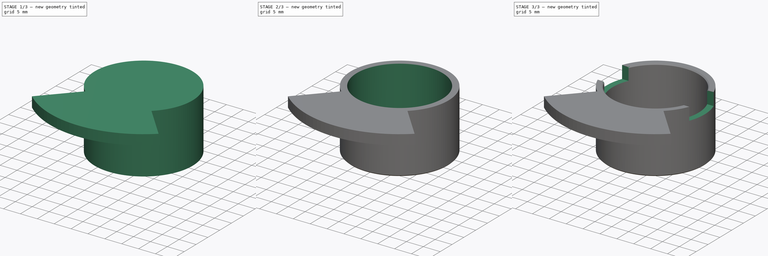
[diagram: build sequence overview — one tinted view per stage of 3, left to right]
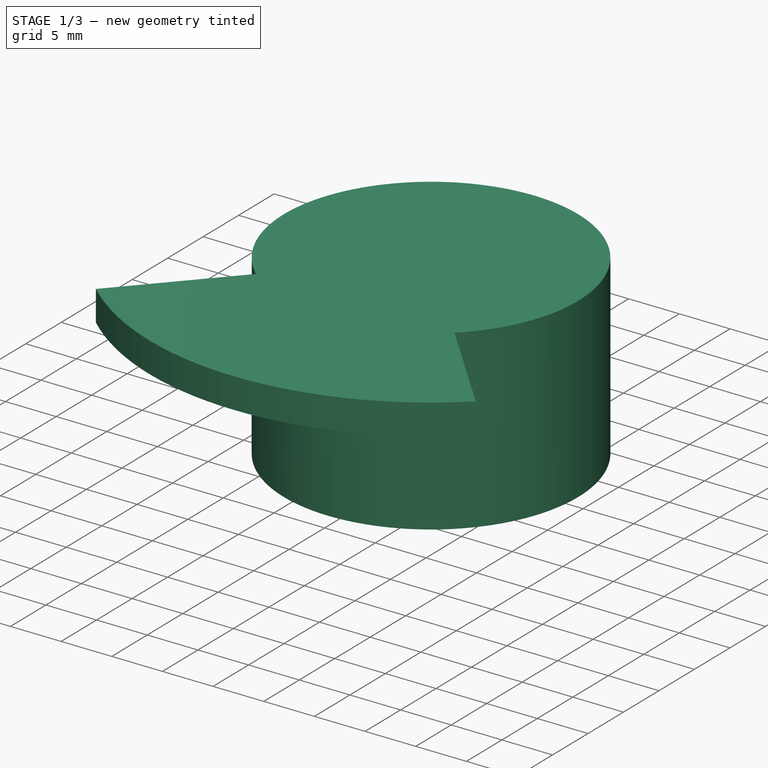
[diagram: stage 1 of 3 — iso view after this stage's code; geometry added in this stage tinted green]
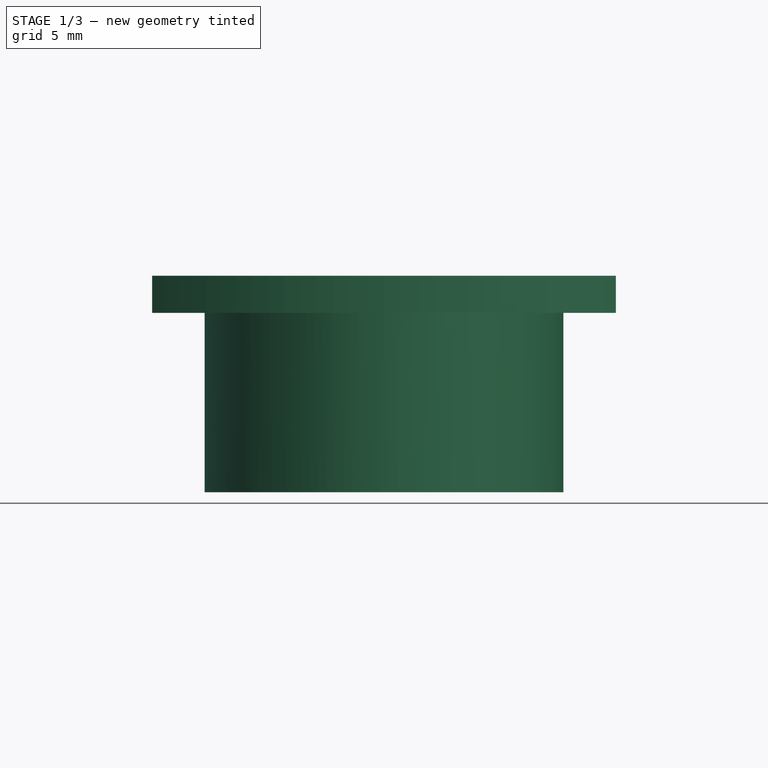
[diagram: stage 1 of 3 — front view after this stage's code; geometry added in this stage tinted green]
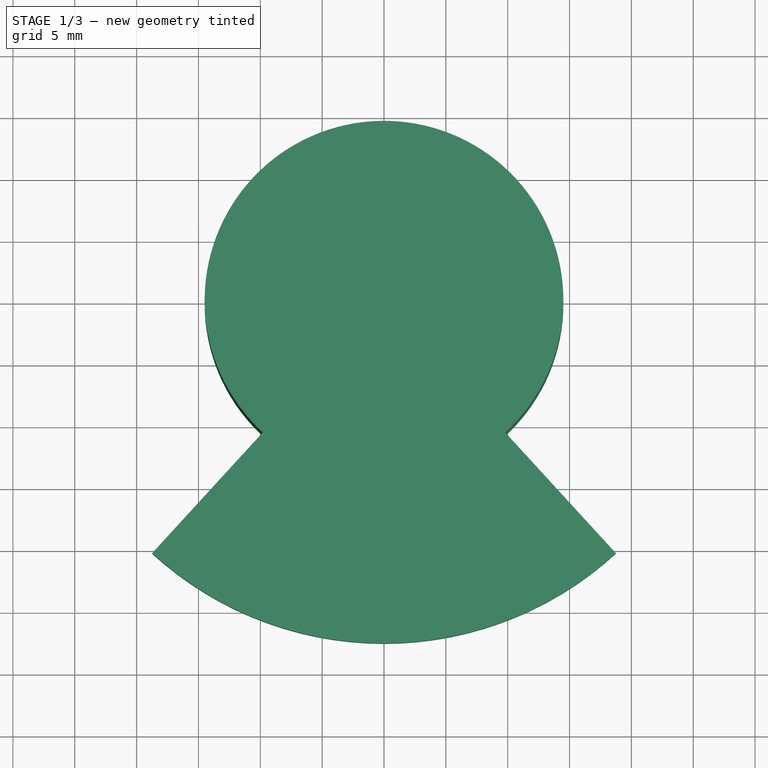
[diagram: stage 1 of 3 — top view after this stage's code; geometry added in this stage tinted green]
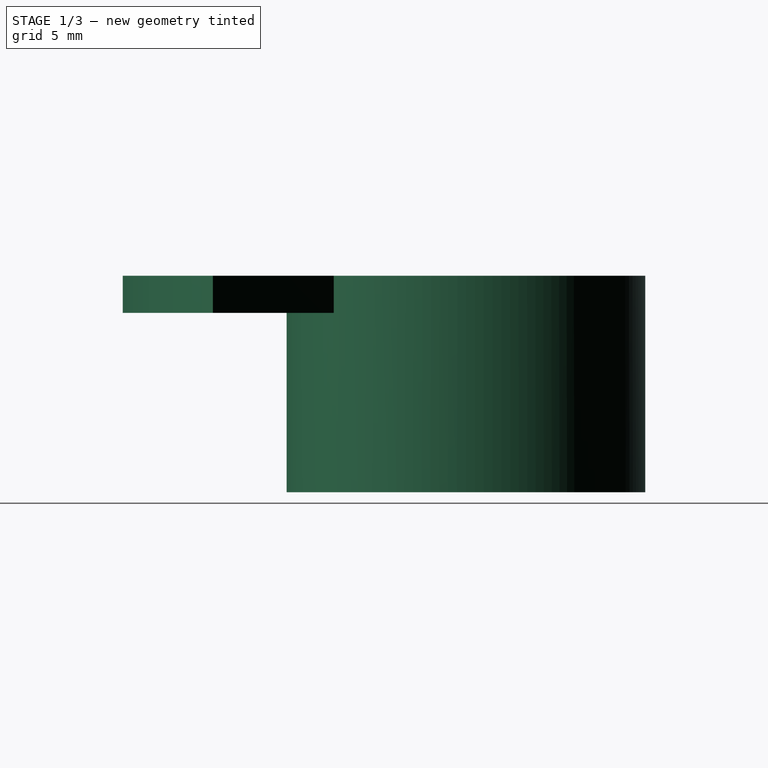
[diagram: stage 1 of 3 — right view after this stage's code; geometry added in this stage tinted green]
FCSTD DOCUMENT  (FreeCAD 0.21R32110 (Git))
Label: Yoke_Roll_IR_Limit_Ring
License: All rights reserved
LicenseURL: http://en.wikipedia.org/wiki/All_rights_reserved
objects: Sketcher::SketchObject×4, PartDesign::Pad×2, PartDesign::Pocket×2, PartDesign::Chamfer×2, App::Part×1, PartDesign::Body×1, App::MeasureDistance×1
note: 17 computed .brp shape members not serialized (recipe doc carries the construction recipe); baked Part::Feature solids carry a one-line shape summary decoded from their .brp

FEATURE [App::Part] Part
  Origin = -> Origin
FEATURE [Sketcher::SketchObject] Sketch136
  FullyConstrained = true
  MapMode = 2
  Placement = pos=(0,0,18.5) rot=(0,0,1;0rad)
  sketch-geometry (1):
    g0: Circle CenterX=0 CenterY=0 CenterZ=0 NormalX=0 NormalY=0 NormalZ=1 AngleXU=0 Radius=14.5
  constraints (2):
    c: Coincident(g0,g-1)
    c: Diameter(g0) = 29
FEATURE [Sketcher::SketchObject] Sketch138
  FullyConstrained = true
  MapMode = 5
  Support = -> [XY_Plane044]
  sketch-geometry (1):
    g0: Circle CenterX=0 CenterY=0 CenterZ=0 NormalX=0 NormalY=0 NormalZ=1 AngleXU=0 Radius=12.725
  constraints (2):
    c: Coincident(g0,g-1)
    c: Diameter(g0) = 25.45
FEATURE [Sketcher::SketchObject] Sketch141
  AttachmentOffset = pos=(0,0,17) rot=(0,0,1;0rad)
  FullyConstrained = true
  MapMode = 5
  Placement = pos=(0,0,17) rot=(0,0,1;0rad)
  Support = -> [XY_Plane044]
  sketch-geometry (3):
    g0: LineSegment StartX=0 StartY=0 StartZ=0 EndX=18.7476 EndY=-20.4594 EndZ=0
    g1: LineSegment StartX=0 StartY=0 StartZ=0 EndX=-18.7476 EndY=-20.4594 EndZ=0
    g2: ArcOfCircle CenterX=0 CenterY=0 CenterZ=0 NormalX=0 NormalY=0 NormalZ=1 AngleXU=0 Radius=27.75 StartAngle=3.97062 EndAngle=5.45415
  constraints (8):
    c: Coincident(g0,g-1)
    c: Coincident(g1,g0)
    c: Coincident(g2,g0)
    c: Diameter(g2) = 55.5
    c: Coincident(g2,g0)
    c: Coincident(g2,g1)
    c: Symmetric(g1,g0,g-2)
    c: Angle(g1,g0) = 1.48353
FEATURE [PartDesign::Pad] Pad078
  Direction = (0,0,1)
  Length = 17.5
  Length2 = 10
  Placement = pos=(0,0,18.5) rot=(0,0,1;0rad)
  Profile = -> Sketch136
  ReferenceAxis = -> Sketch136 [N_Axis]
  Reversed = true
  Type = 0
FEATURE [PartDesign::Pad] Pad079
  BaseFeature = -> Pad078
  Direction = (0,0,1)
  Length = 3
  Length2 = 10
  Midplane = true
  Placement = pos=(0,0,18.5) rot=(0,0,1;0rad)
  Profile = -> Sketch141
  ReferenceAxis = -> Sketch141 [N_Axis]
  Type = 0
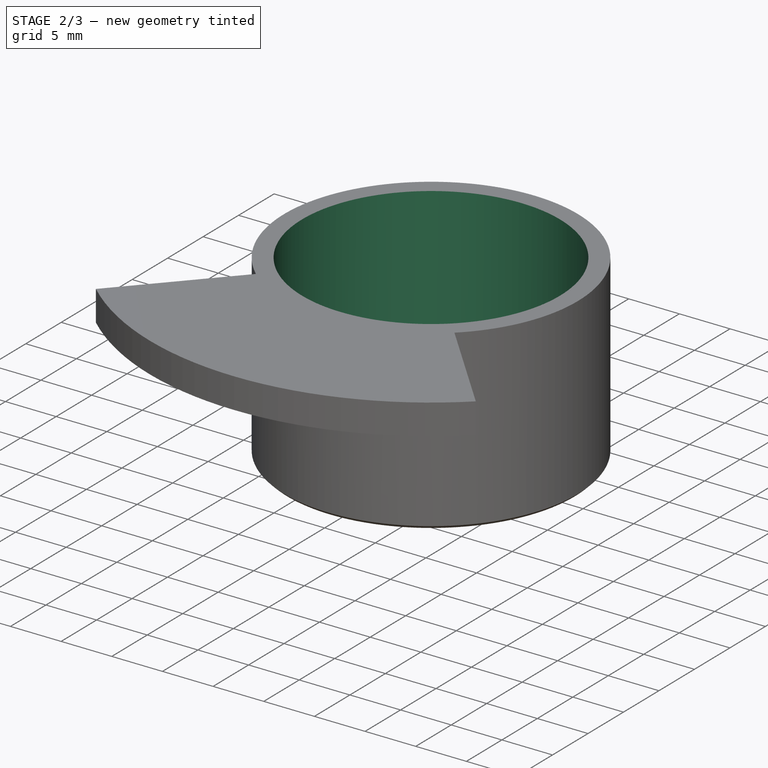
[diagram: stage 2 of 3 — iso view after this stage's code; geometry added in this stage tinted green]
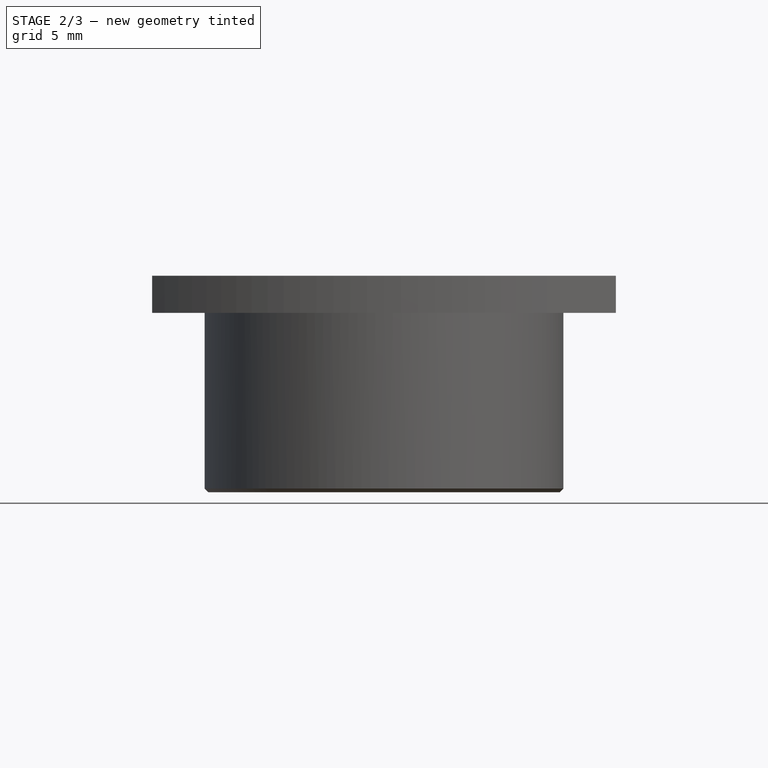
[diagram: stage 2 of 3 — front view after this stage's code; geometry added in this stage tinted green]
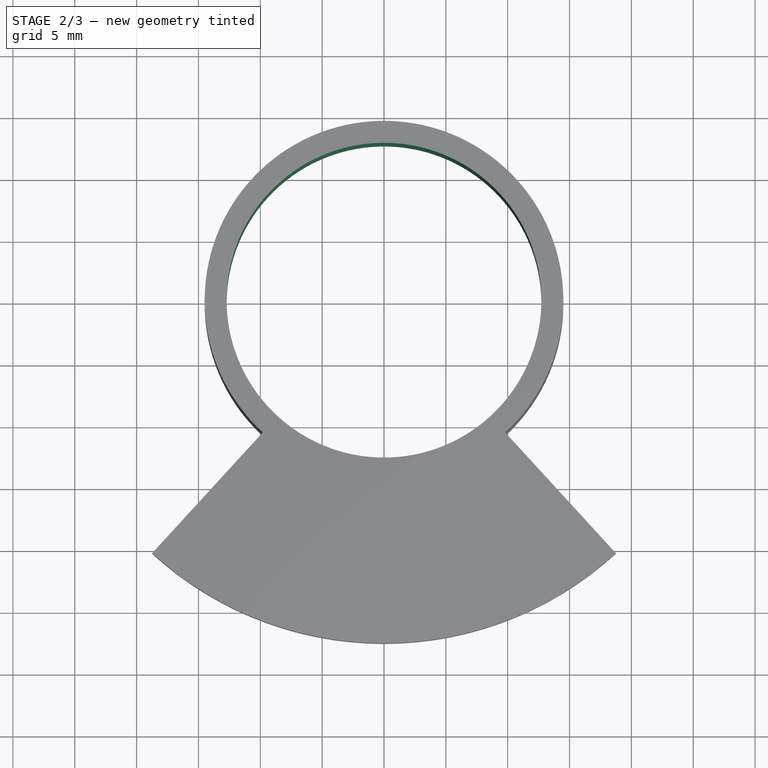
[diagram: stage 2 of 3 — top view after this stage's code; geometry added in this stage tinted green]
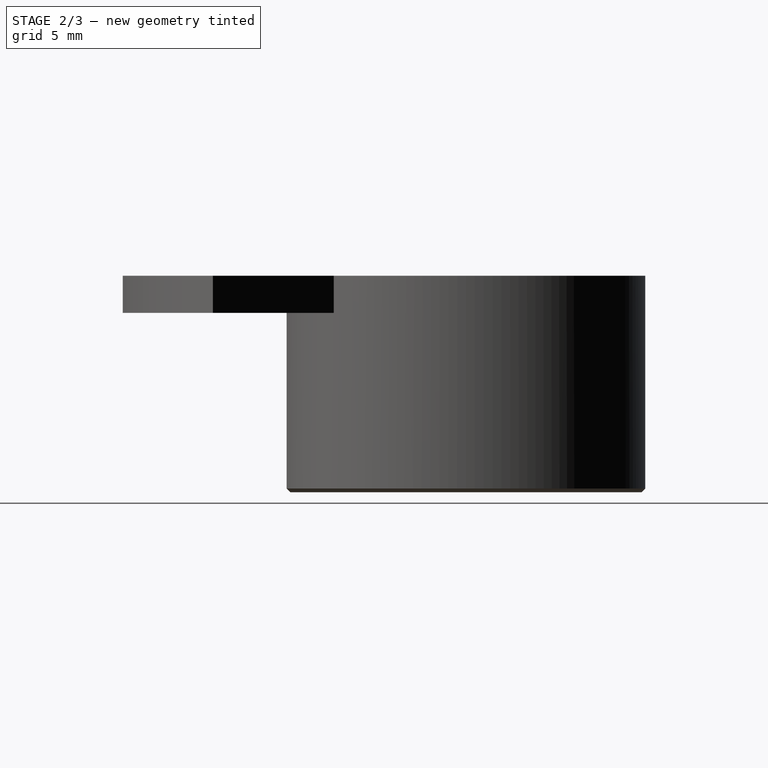
[diagram: stage 2 of 3 — right view after this stage's code; geometry added in this stage tinted green]
FEATURE [PartDesign::Pocket] Pocket051
  BaseFeature = -> Pad079
  Direction = (0,0,-1)
  Length = 5
  Length2 = 5
  Placement = pos=(0,0,18.5) rot=(0,0,1;0rad)
  Profile = -> Sketch138
  ReferenceAxis = -> Sketch138 [N_Axis]
  Reversed = true
  Type = 1
FEATURE [PartDesign::Chamfer] Chamfer
  Angle = 45
  Base = -> Pocket051 [Edge19,Edge7]
  BaseFeature = -> Pocket051
  ChamferType = 0
  FlipDirection = false
  Placement = pos=(0,0,18.5) rot=(0,0,1;0rad)
  Size = 0.3
  Size2 = 1
  SupportTransform = false
  UseAllEdges = false
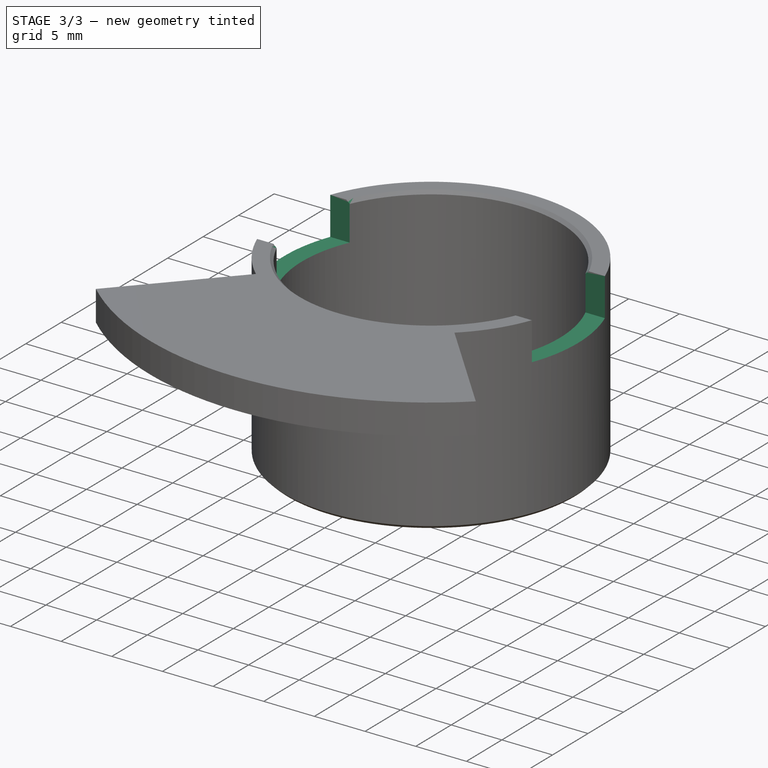
[diagram: stage 3 of 3 — iso view after this stage's code; geometry added in this stage tinted green]
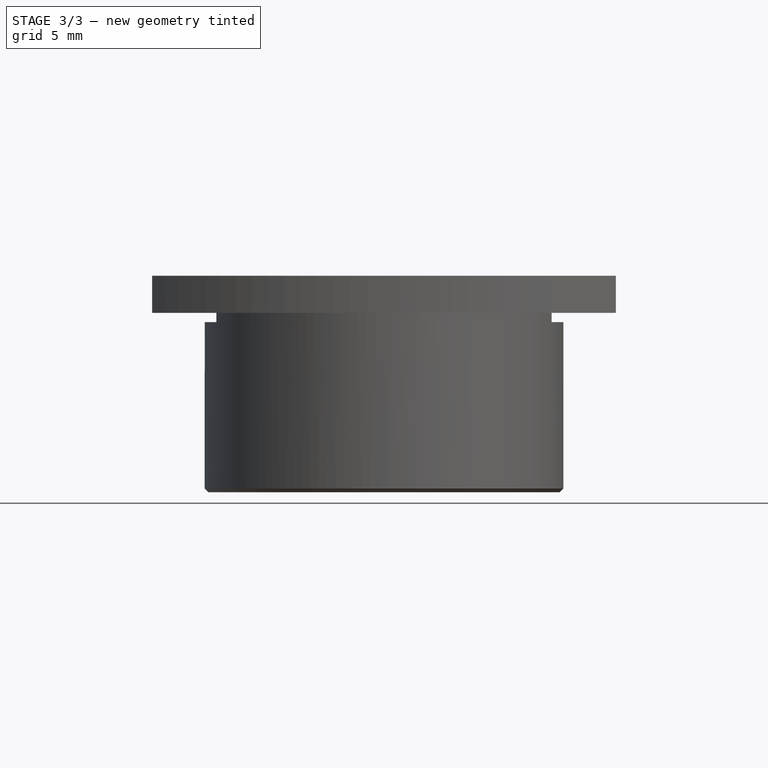
[diagram: stage 3 of 3 — front view after this stage's code; geometry added in this stage tinted green]
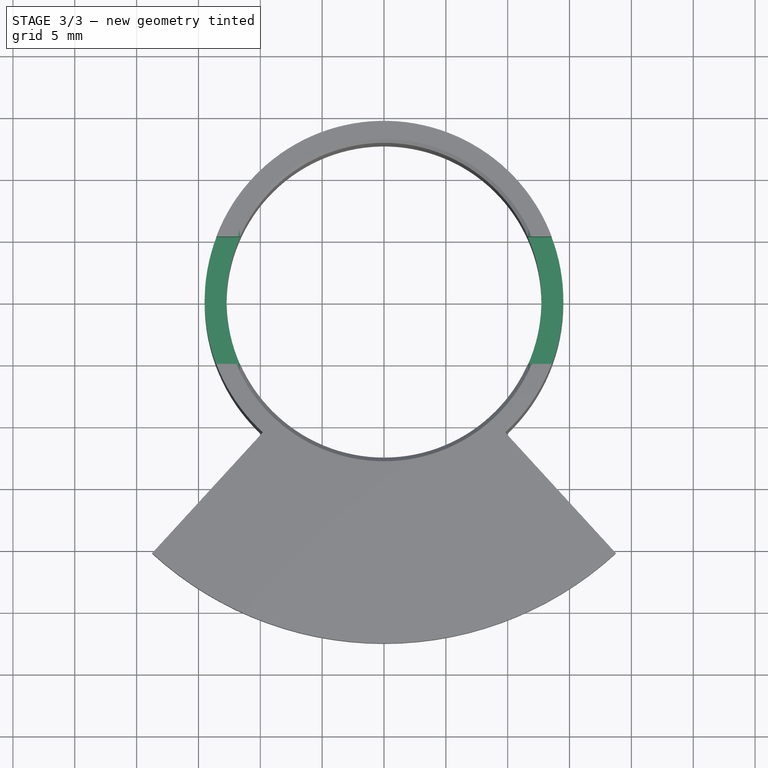
[diagram: stage 3 of 3 — top view after this stage's code; geometry added in this stage tinted green]
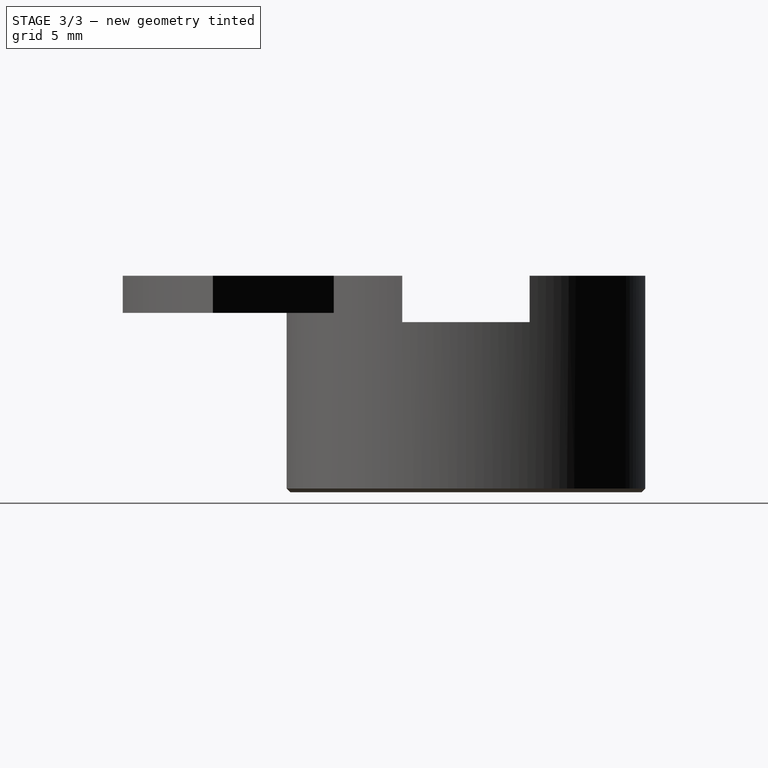
[diagram: stage 3 of 3 — right view after this stage's code; geometry added in this stage tinted green]
FEATURE [PartDesign::Chamfer] Chamfer001
  Angle = 45
  Base = -> Chamfer [Edge22]
  BaseFeature = -> Chamfer
  ChamferType = 0
  FlipDirection = false
  Placement = pos=(0,0,18.5) rot=(0,0,1;0rad)
  Size = 0.3
  Size2 = 1
  SupportTransform = false
  UseAllEdges = false
FEATURE [Sketcher::SketchObject] Sketch
  AttachmentOffset = pos=(0,0,18.5) rot=(0,0,1;0rad)
  FullyConstrained = true
  MapMode = 5
  Placement = pos=(0,0,18.5) rot=(0,0,1;0rad)
  Support = -> [XY_Plane044]
  sketch-geometry (4):
    g0: LineSegment StartX=-15 StartY=5.15 StartZ=0 EndX=15 EndY=5.15 EndZ=0
    g1: LineSegment StartX=15 StartY=5.15 StartZ=0 EndX=15 EndY=-5.15 EndZ=0
    g2: LineSegment StartX=15 StartY=-5.15 StartZ=0 EndX=-15 EndY=-5.15 EndZ=0
    g3: LineSegment StartX=-15 StartY=-5.15 StartZ=0 EndX=-15 EndY=5.15 EndZ=0
  constraints (10):
    c: Coincident(g0,g1)
    c: Coincident(g1,g2)
    c: Coincident(g2,g3)
    c: Coincident(g3,g0)
    c: Horizontal(g0)
    c: Vertical(g1)
    c: Symmetric(g2,g1,g-2)
    c: Symmetric(g2,g0,g-1)
    c: Distance(g2) = 30
    c: Distance(g3) = 10.3
FEATURE [PartDesign::Pocket] Pocket
  BaseFeature = -> Chamfer001
  Direction = (0,0,-1)
  Length = 3.75
  Length2 = 5
  Placement = pos=(0,0,18.5) rot=(0,0,1;0rad)
  Profile = -> Sketch
  ReferenceAxis = -> Sketch [N_Axis]
  Type = 0
FEATURE [PartDesign::Body] Body028  label="IR Cam"
  Group = -> [Sketch136,Sketch138,Sketch141,Pad078,Pad079,Pocket051,Chamfer,Chamfer001,Sketch,Pocket]
  Origin = -> Origin044
  Placement = pos=(0,28.5,0) rot=(-1,0,0;1.5708rad)
  Tip = -> Pocket
FEATURE [App::MeasureDistance] Distance  label="Distance: 12.51 mm"
  Distance = 12.5134
  P1 = (9.89823,44.0673,10.5804)
  P2 = (18.2409,44.1607,19.9065)
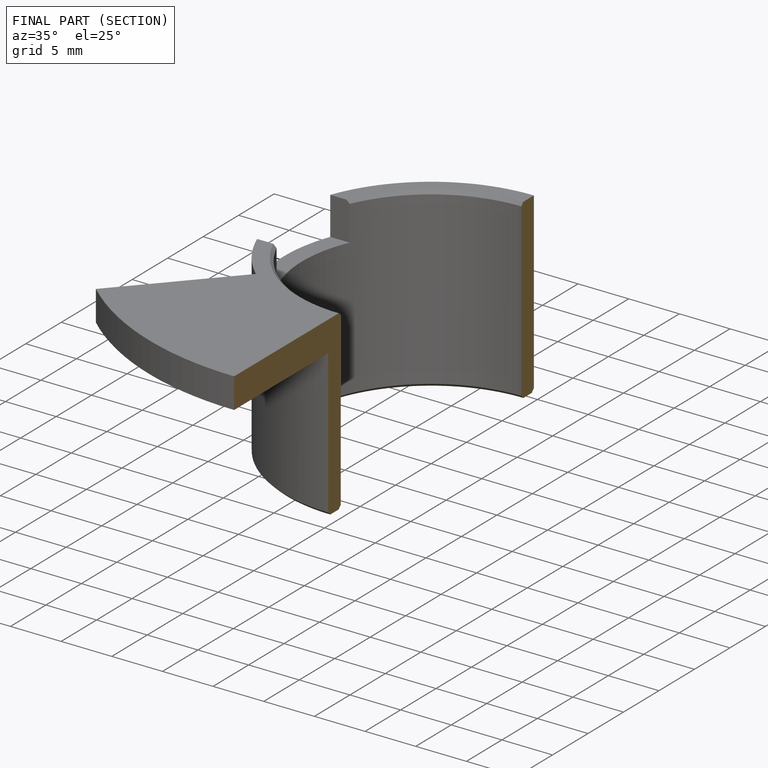
[diagram: finished part — half-section view (interior)]
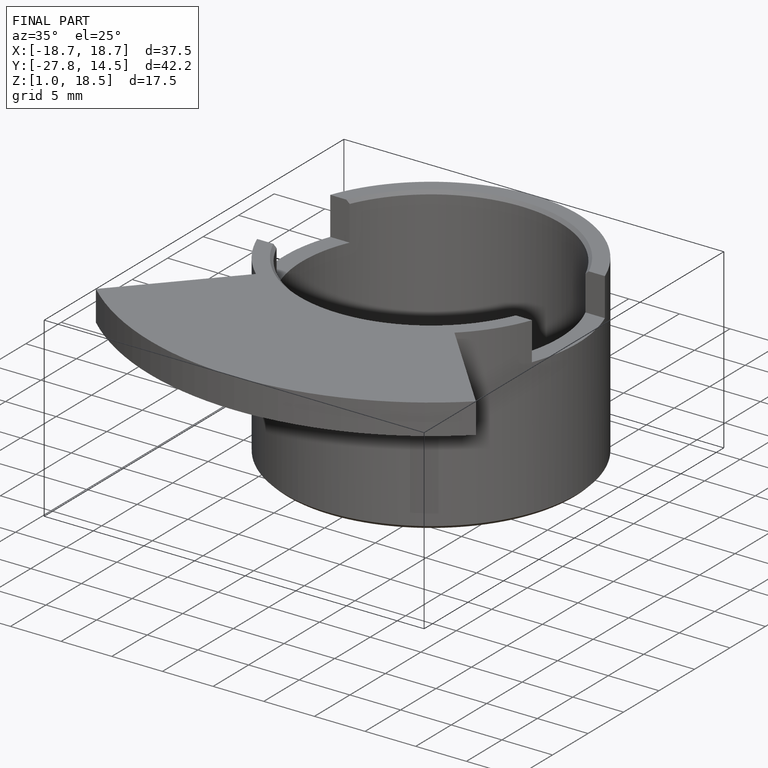
[diagram: finished part — iso view with bounding-box wireframe]
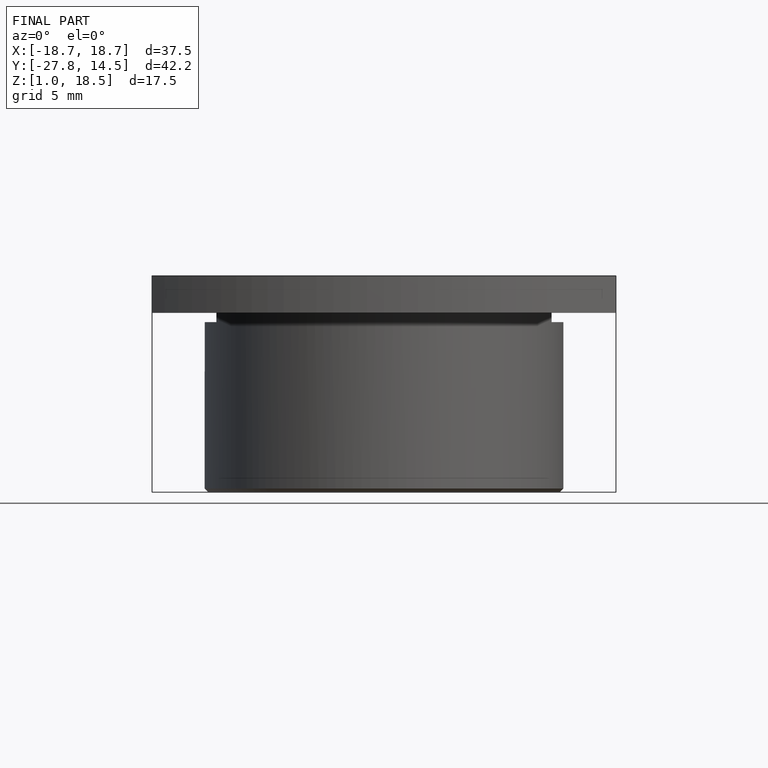
[diagram: finished part — front view with bounding-box wireframe]
